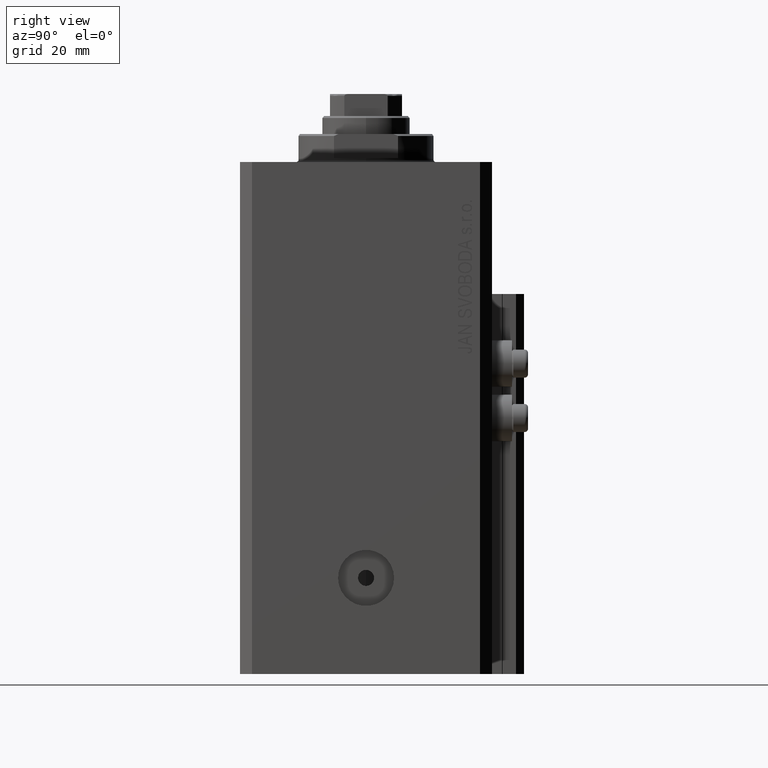
[diagram: clean part render]
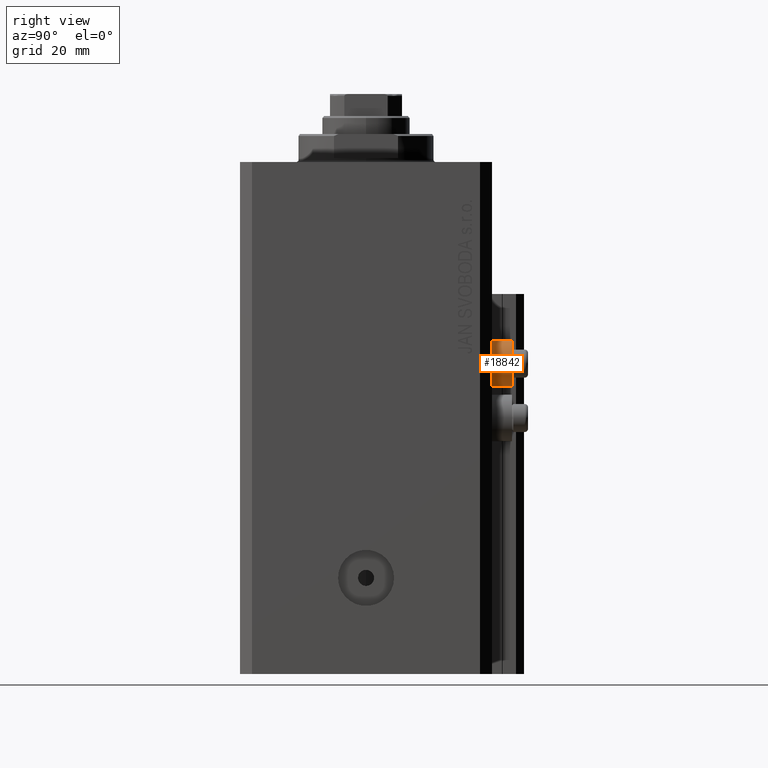
[diagram: same view with one face highlighted and labeled with its STEP entity id]
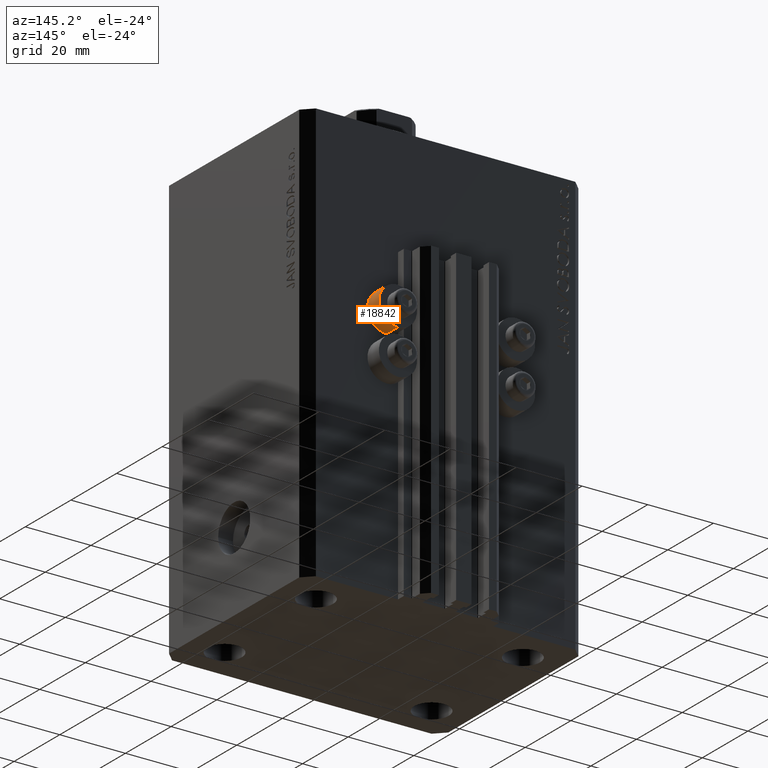
[diagram: same view with one face highlighted and labeled with its STEP entity id]
A machine part, right view. The second image highlights one B-rep face of the part: STEP entity #18842.
A second angle (auxiliary view) of the same face is appended — the face is thin or edge-on in the first view.
In plain terms, the highlighted cylindrical surface (edge-blend (fillet) strip) has radius 5.8 mm, axis along (0, 1, 0).
Its self-contained STEP definition (entity closure, byte-faithful):
#1068 = DIRECTION ( 'NONE',  ( 0.000000000000000000, 0.000000000000000000, 1.000000000000000000 ) ) ;
#3776 = ORIENTED_EDGE ( 'NONE', *, *, #18608, .T. ) ;
#4711 = CARTESIAN_POINT ( 'NONE',  ( 18.00000000000000355, 31.50000000000000000, -44.60000000000000142 ) ) ;
#5373 = VERTEX_POINT ( 'NONE', #17675 ) ;
#8562 = DIRECTION ( 'NONE',  ( 0.000000000000000000, 0.000000000000000000, 1.000000000000000000 ) ) ;
#10588 = VECTOR ( 'NONE', #27025, 1000.000000000000000 ) ;
#10902 = EDGE_CURVE ( 'NONE', #13138, #33198, #37526, .T. ) ;
#12106 = AXIS2_PLACEMENT_3D ( 'NONE', #45321, #34581, #26944 ) ;
#13138 = VERTEX_POINT ( 'NONE', #21022 ) ;
#13335 = DIRECTION ( 'NONE',  ( 0.000000000000000000, 1.000000000000000000, 0.000000000000000000 ) ) ;
#16691 = CYLINDRICAL_SURFACE ( 'NONE', #36606, 5.799999999999999822 ) ;
#17675 = CARTESIAN_POINT ( 'NONE',  ( 18.00000000000000355, 36.49999999996099120, -56.20000000000000284 ) ) ;
#18608 = EDGE_CURVE ( 'NONE', #13138, #5373, #42059, .T. ) ;
#18842 = ADVANCED_FACE ( 'NONE', ( #30553 ), #16691, .T. ) ;
#19660 = LINE ( 'NONE', #34701, #44434 ) ;
#19755 = CIRCLE ( 'NONE', #12106, 5.799999999999999822 ) ;
#21022 = CARTESIAN_POINT ( 'NONE',  ( 18.00000000000000355, 31.50000000000000000, -56.20000000000000284 ) ) ;
#23572 = EDGE_CURVE ( 'NONE', #33198, #45778, #19660, .T. ) ;
#25011 = CARTESIAN_POINT ( 'NONE',  ( 18.00000000000000355, 36.49999999996099120, -44.60000000000000142 ) ) ;
#26628 = DIRECTION ( 'NONE',  ( -0.000000000000000000, -1.000000000000000000, -0.000000000000000000 ) ) ;
#26944 = DIRECTION ( 'NONE',  ( 0.000000000000000000, 0.000000000000000000, 1.000000000000000000 ) ) ;
#27025 = DIRECTION ( 'NONE',  ( 0.000000000000000000, 1.000000000000000000, 0.000000000000000000 ) ) ;
#27405 = EDGE_CURVE ( 'NONE', #5373, #45778, #19755, .T. ) ;
#30553 = FACE_OUTER_BOUND ( 'NONE', #32276, .T. ) ;
#31031 = CARTESIAN_POINT ( 'NONE',  ( 18.00000000000000355, 36.49999999996099831, -50.39999999999999858 ) ) ;
#31160 = ORIENTED_EDGE ( 'NONE', *, *, #10902, .F. ) ;
#32276 = EDGE_LOOP ( 'NONE', ( #31160, #3776, #45394, #44541 ) ) ;
#33198 = VERTEX_POINT ( 'NONE', #4711 ) ;
#33782 = CARTESIAN_POINT ( 'NONE',  ( 18.00000000000000355, 31.50000000000000000, -50.39999999999999858 ) ) ;
#34581 = DIRECTION ( 'NONE',  ( -0.000000000000000000, -1.000000000000000000, -0.000000000000000000 ) ) ;
#34701 = CARTESIAN_POINT ( 'NONE',  ( 18.00000000000000355, 36.49999999996099831, -44.60000000000000142 ) ) ;
#34902 = CARTESIAN_POINT ( 'NONE',  ( 18.00000000000000355, 36.49999999996099831, -56.20000000000000284 ) ) ;
#36606 = AXIS2_PLACEMENT_3D ( 'NONE', #31031, #13335, #8562 ) ;
#37526 = CIRCLE ( 'NONE', #43619, 5.799999999999999822 ) ;
#41614 = DIRECTION ( 'NONE',  ( 0.000000000000000000, 1.000000000000000000, 0.000000000000000000 ) ) ;
#42059 = LINE ( 'NONE', #34902, #10588 ) ;
#43619 = AXIS2_PLACEMENT_3D ( 'NONE', #33782, #26628, #1068 ) ;
#44434 = VECTOR ( 'NONE', #41614, 1000.000000000000000 ) ;
#44541 = ORIENTED_EDGE ( 'NONE', *, *, #23572, .F. ) ;
#45321 = CARTESIAN_POINT ( 'NONE',  ( 18.00000000000000355, 36.49999999996099120, -50.39999999999999858 ) ) ;
#45394 = ORIENTED_EDGE ( 'NONE', *, *, #27405, .T. ) ;
#45778 = VERTEX_POINT ( 'NONE', #25011 ) ;